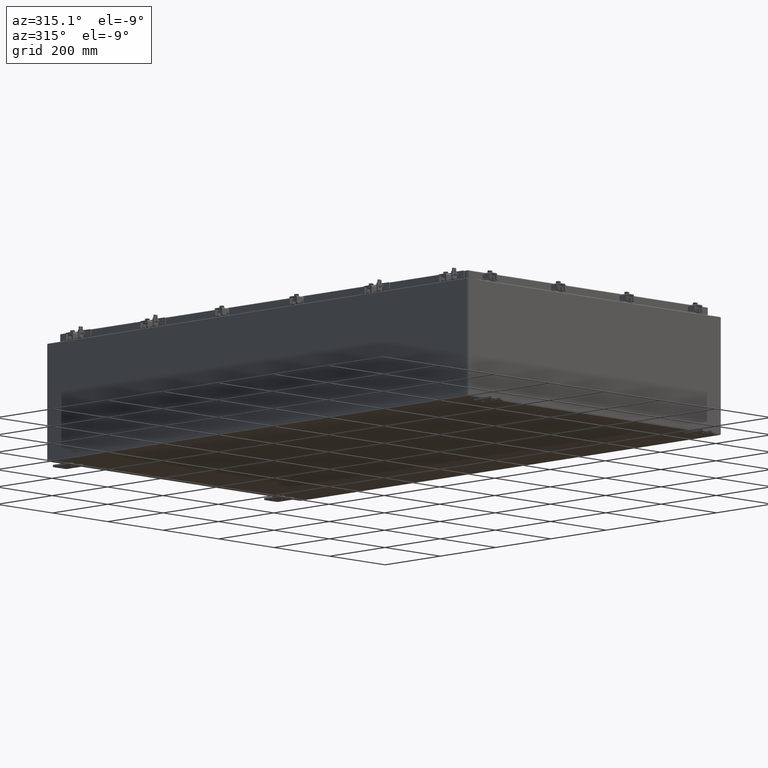
[diagram: clean part render]
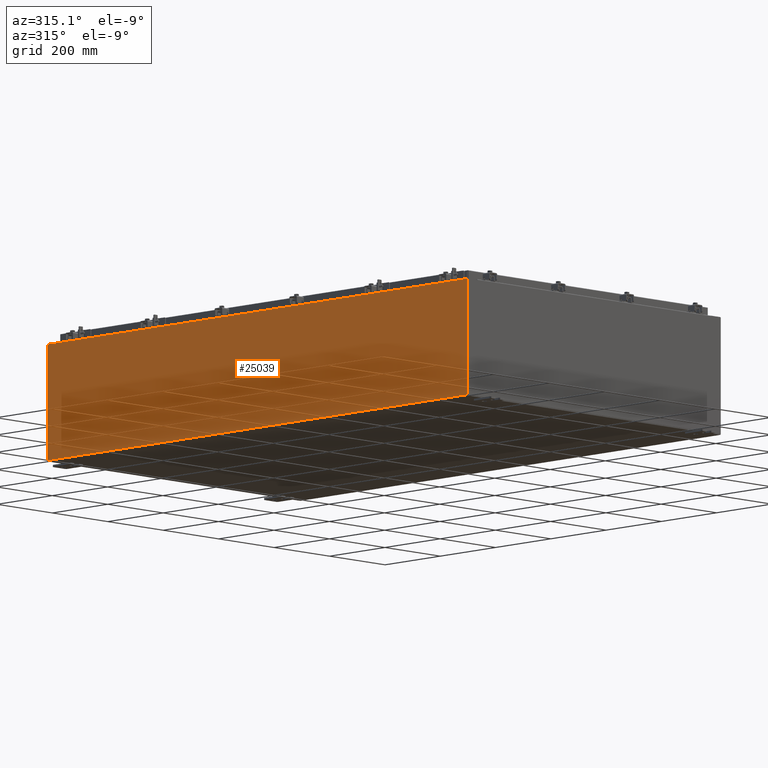
[diagram: same view with one face highlighted and labeled with its STEP entity id]
A machine part, auxiliary view. The second image highlights one B-rep face of the part: STEP entity #25039.
In plain terms, the highlighted planar face has unit normal (1, 0, 0).
Its self-contained STEP definition (entity closure, byte-faithful):
#1862 = CARTESIAN_POINT ( 'NONE',  ( -18.00000000000000400, 0.0000000000000000000, -6.293710784286997500E-014 ) ) ;
#3762 = ORIENTED_EDGE ( 'NONE', *, *, #19054, .T. ) ;
#4497 = DIRECTION ( 'NONE',  ( -0.0000000000000000000, 1.000000000000000000, -0.0000000000000000000 ) ) ;
#5042 = LINE ( 'NONE', #17342, #10027 ) ;
#5065 = LINE ( 'NONE', #6955, #20721 ) ;
#5302 = CARTESIAN_POINT ( 'NONE',  ( -18.00000000000004300, -29.92530000000001100, 11.83760000000000200 ) ) ;
#6140 = PLANE ( 'NONE',  #9032 ) ;
#6310 = ORIENTED_EDGE ( 'NONE', *, *, #24031, .T. ) ;
#6912 = DIRECTION ( 'NONE',  ( 3.482016343714355500E-015, 0.0000000000000000000, -1.000000000000000000 ) ) ;
#6955 = CARTESIAN_POINT ( 'NONE',  ( -18.00000000000004300, -29.92530000000001800, 11.83760000000000200 ) ) ;
#7073 = ORIENTED_EDGE ( 'NONE', *, *, #24601, .F. ) ;
#7502 = VERTEX_POINT ( 'NONE', #17046 ) ;
#8274 = LINE ( 'NONE', #17526, #18939 ) ;
#8295 = DIRECTION ( 'NONE',  ( 3.482016343714355100E-015, 0.0000000000000000000, -1.000000000000000000 ) ) ;
#9032 = AXIS2_PLACEMENT_3D ( 'NONE', #1862, #21053, #8295 ) ;
#9806 = ORIENTED_EDGE ( 'NONE', *, *, #26678, .T. ) ;
#10027 = VECTOR ( 'NONE', #4497, 39.37007874015748100 ) ;
#11456 = VERTEX_POINT ( 'NONE', #12113 ) ;
#11747 = DIRECTION ( 'NONE',  ( -3.482016343714355500E-015, 0.0000000000000000000, 1.000000000000000000 ) ) ;
#12113 = CARTESIAN_POINT ( 'NONE',  ( -18.00000000000000400, -29.92530000000001100, 0.01299999999999984700 ) ) ;
#17046 = CARTESIAN_POINT ( 'NONE',  ( -18.00000000000004300, 29.92529999999998900, 11.83760000000000200 ) ) ;
#17342 = CARTESIAN_POINT ( 'NONE',  ( -18.00000000000000400, 29.92529999999998900, 0.01299999999999984700 ) ) ;
#17526 = CARTESIAN_POINT ( 'NONE',  ( -18.00000000000000400, 29.92529999999998900, -6.293710784286997500E-014 ) ) ;
#17753 = CARTESIAN_POINT ( 'NONE',  ( -18.00000000000000400, 29.92529999999998600, 0.01299999999999984700 ) ) ;
#18939 = VECTOR ( 'NONE', #6912, 39.37007874015748100 ) ;
#19054 = EDGE_CURVE ( 'NONE', #11456, #19699, #24659, .T. ) ;
#19699 = VERTEX_POINT ( 'NONE', #5302 ) ;
#19722 = DIRECTION ( 'NONE',  ( 0.0000000000000000000, 1.000000000000000000, 0.0000000000000000000 ) ) ;
#20721 = VECTOR ( 'NONE', #19722, 39.37007874015748100 ) ;
#21053 = DIRECTION ( 'NONE',  ( 1.000000000000000000, 0.0000000000000000000, 3.482016343714355100E-015 ) ) ;
#23355 = FACE_OUTER_BOUND ( 'NONE', #27473, .T. ) ;
#24003 = VECTOR ( 'NONE', #11747, 39.37007874015748100 ) ;
#24031 = EDGE_CURVE ( 'NONE', #19699, #7502, #5065, .T. ) ;
#24094 = VERTEX_POINT ( 'NONE', #17753 ) ;
#24601 = EDGE_CURVE ( 'NONE', #11456, #24094, #5042, .T. ) ;
#24659 = LINE ( 'NONE', #26645, #24003 ) ;
#25039 = ADVANCED_FACE ( 'NONE', ( #23355 ), #6140, .F. ) ;
#26645 = CARTESIAN_POINT ( 'NONE',  ( -18.00000000000000400, -29.92530000000001100, -6.293710784286997500E-014 ) ) ;
#26678 = EDGE_CURVE ( 'NONE', #7502, #24094, #8274, .T. ) ;
#27473 = EDGE_LOOP ( 'NONE', ( #6310, #9806, #7073, #3762 ) ) ;